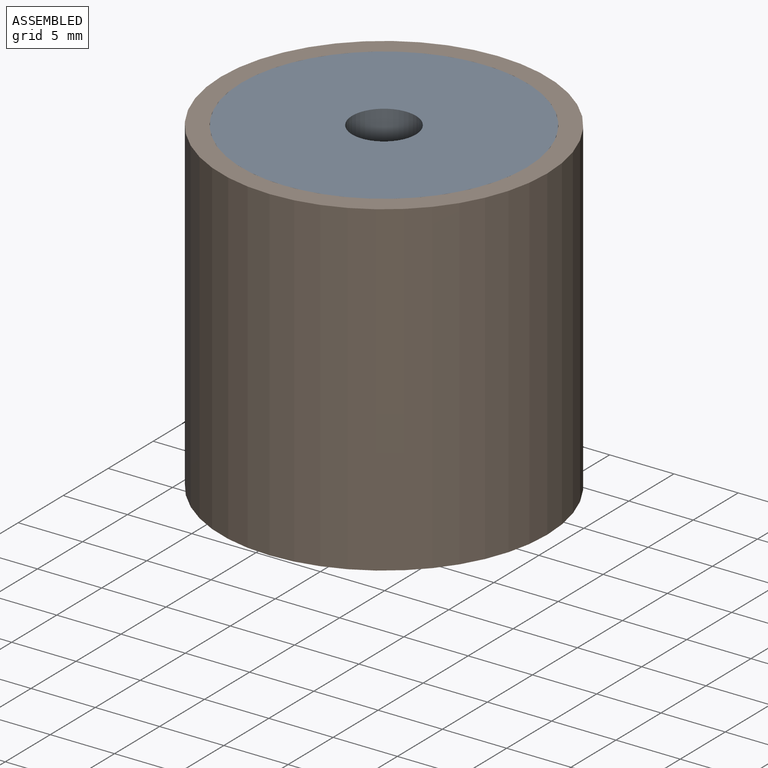
[diagram: assembled view]
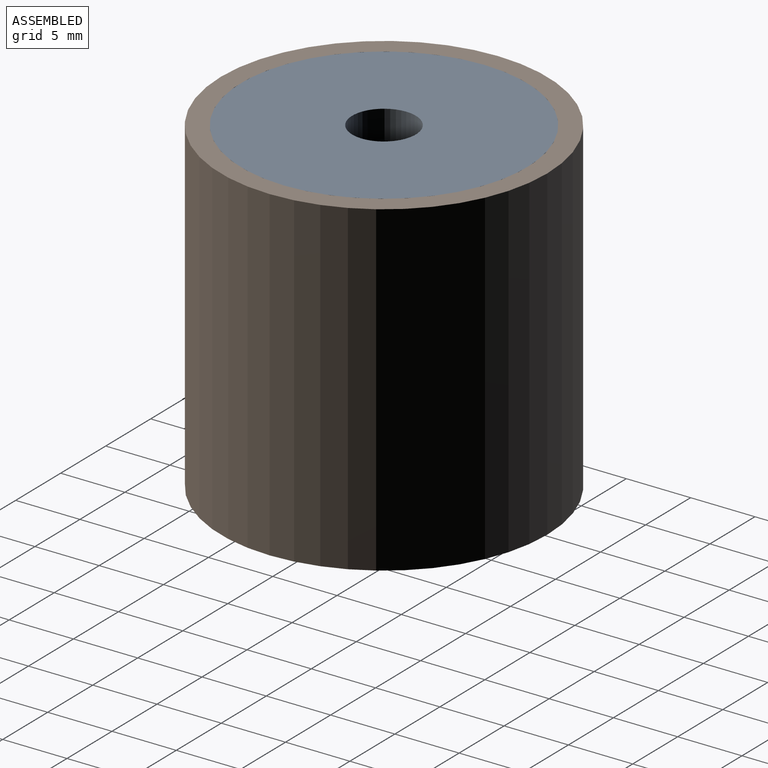
[diagram: assembled view, second angle]
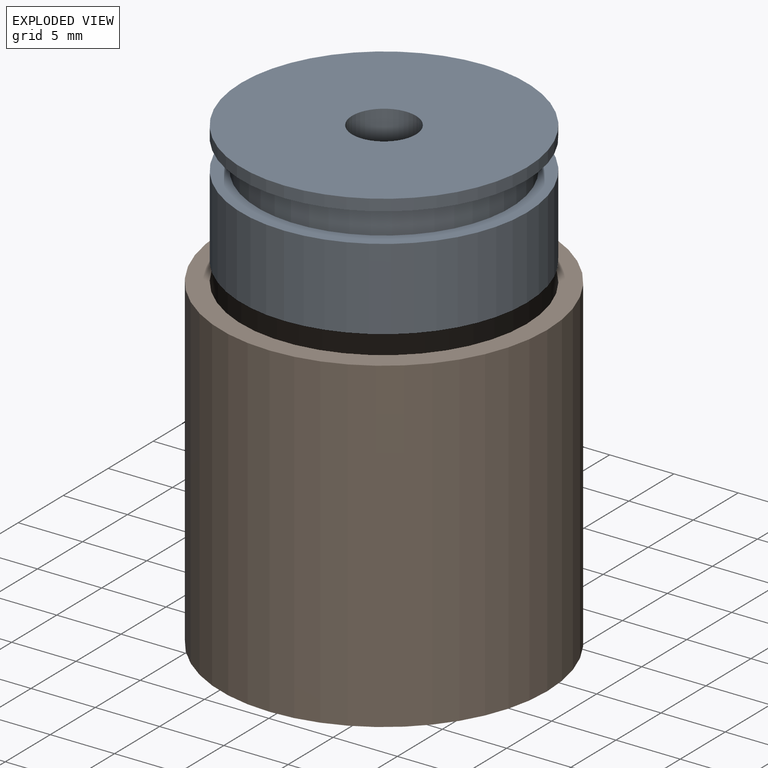
[diagram: exploded view]
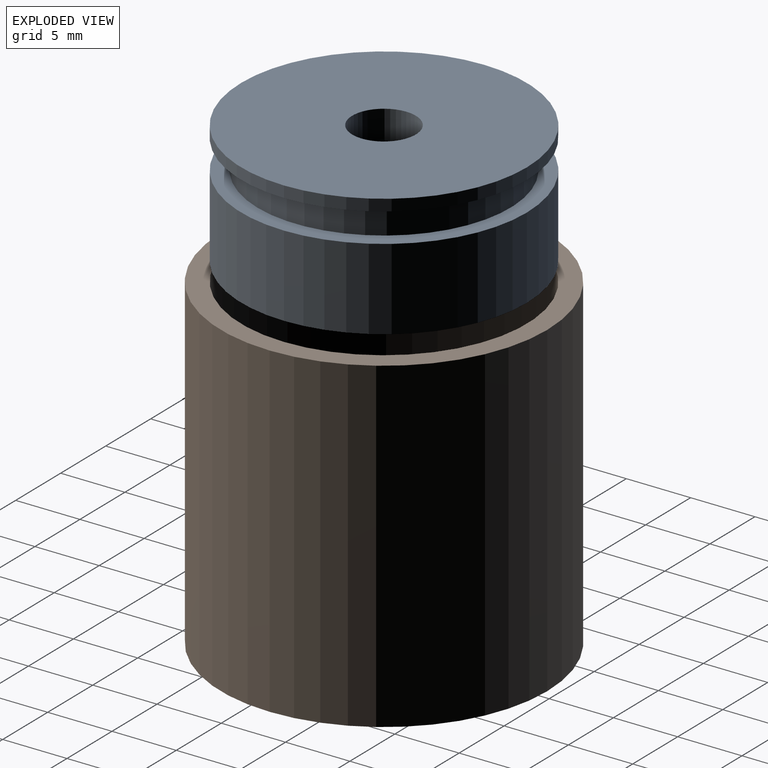
[diagram: exploded view, second angle]
ASSEMBLY  parts=2 mates=2
PART A: 8 faces, bbox 22.2x22.2x9.5 mm
  f0: plane 22.23x22.23mm, normal (0,0,-1), area 368.7mm2, adj f1,f7
  f1: cylinder r=11.11mm len=22.23mm, axis (0,0,-1), area 443.4mm2, adj f0,f2
  f2: plane 22.23x22.23mm, normal (0,0,1), area 83.6mm2, adj f1,f3
  f3: cylinder r=9.84mm len=19.69mm, axis (0,0,-1), area 141.4mm2, adj f2,f4
  f4: plane 22.23x22.23mm, normal (0,0,-1), area 83.6mm2, adj f3,f5
  f5: cylinder r=11.11mm len=22.23mm, axis (0,0,-1), area 62.1mm2, adj f4,f6
  f6: plane 22.23x22.23mm, normal (0,0,1), area 368.7mm2, adj f5,f7
  f7: cylinder r=2.48mm len=9.53mm, axis (0,0,1), area 148.2mm2, adj f0,f6
PART B: 23 faces, bbox 25.4x25.4x25.4 mm
  f0: cylinder r=0.79mm len=9.69mm, axis (0,0,-1), area 46.1mm2, adj f16,f22
  f1: cylinder r=0.79mm len=9.69mm, axis (0,0,-1), area 46.1mm2, adj f16,f22
  f2: cylinder r=0.79mm len=9.69mm, axis (0,0,-1), area 46.1mm2, adj f16,f22
  f3: cylinder r=0.79mm len=9.69mm, axis (0,0,-1), area 46.1mm2, adj f16,f22
  f4: cylinder r=0.79mm len=9.69mm, axis (0,0,-1), area 46.1mm2, adj f16,f22
  f5: cylinder r=0.79mm len=9.69mm, axis (0,0,-1), area 46.1mm2, adj f16,f22
  f6: cylinder r=0.79mm len=9.69mm, axis (0,0,-1), area 46.1mm2, adj f16,f22
  f7: cylinder r=0.79mm len=9.69mm, axis (0,0,-1), area 46.1mm2, adj f16,f22
  f8: cylinder r=0.79mm len=9.69mm, axis (0,0,-1), area 46.1mm2, adj f16,f22
  f9: cylinder r=0.79mm len=9.69mm, axis (0,0,-1), area 46.1mm2, adj f16,f22
  f10: cylinder r=0.79mm len=9.69mm, axis (0,0,-1), area 46.1mm2, adj f16,f22
  f11: cylinder r=0.79mm len=9.69mm, axis (0,0,-1), area 46.1mm2, adj f16,f22
  f12: cylinder r=0.79mm len=9.69mm, axis (0,0,-1), area 46.1mm2, adj f16,f22
  f13: cylinder r=0.79mm len=9.69mm, axis (0,0,-1), area 46.1mm2, adj f16,f22
  f14: cylinder r=0.79mm len=9.69mm, axis (0,0,-1), area 46.1mm2, adj f16,f22
  f15: cylinder r=0.79mm len=9.69mm, axis (0,0,-1), area 46.1mm2, adj f16,f22
  f16: cone r=12.7mm half-angle=60deg, axis (0,0,-1), area 435.3mm2, adj f0,f1,f2,f3,f4,f5,f6,f7
  f17: cylinder r=12.7mm len=25.4mm, axis (0,0,-1), area 2026.8mm2, adj f16,f18
  f18: plane 25.4x25.4mm, normal (0,0,1), area 118.8mm2, adj f17,f21
  f19: plane 11.18x11.18mm, normal (0,0,-1), area 98.1mm2, adj f20
  f20: cylinder r=5.59mm len=11.18mm, axis (0,0,-1), area 230.4mm2, adj f16,f19
  f21: cylinder r=11.11mm len=22.23mm, axis (0,0,1), area 975.4mm2, adj f18,f22
  f22: plane 22.23x22.23mm, normal (0,0,1), area 356.3mm2, adj f0,f1,f2,f3,f4,f5,f6,f7
PLACE A t=(-44.7,-22.63,10.49)mm
PLACE B t=(-44.7,-22.63,-5.38)mm
MATE planar B.f16 <-> A.f1  axis (0,0,1) through (-44.7,-22.63,20.02)mm
MATE cylindrical B.f21 <-> A.f1  axis (0,0,1) through (-44.7,-22.63,13.03)mm
